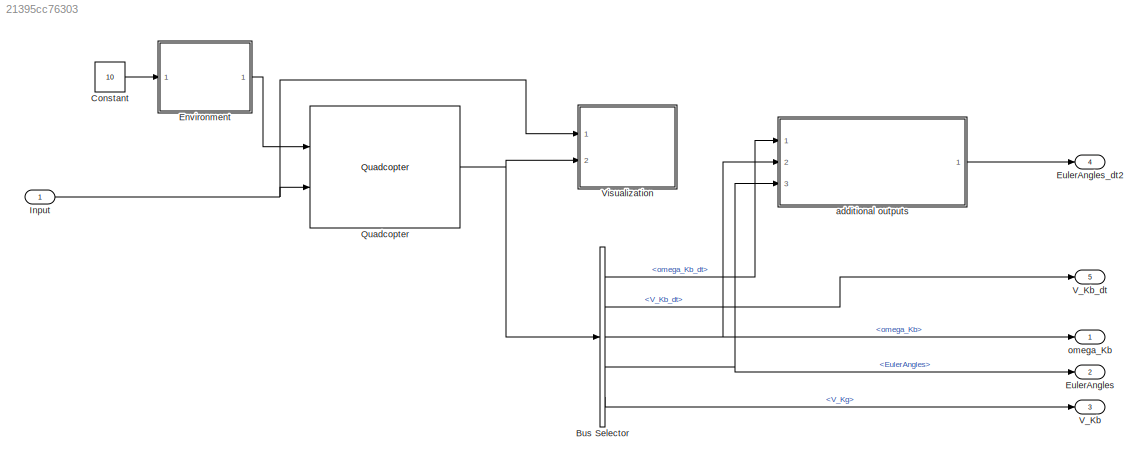
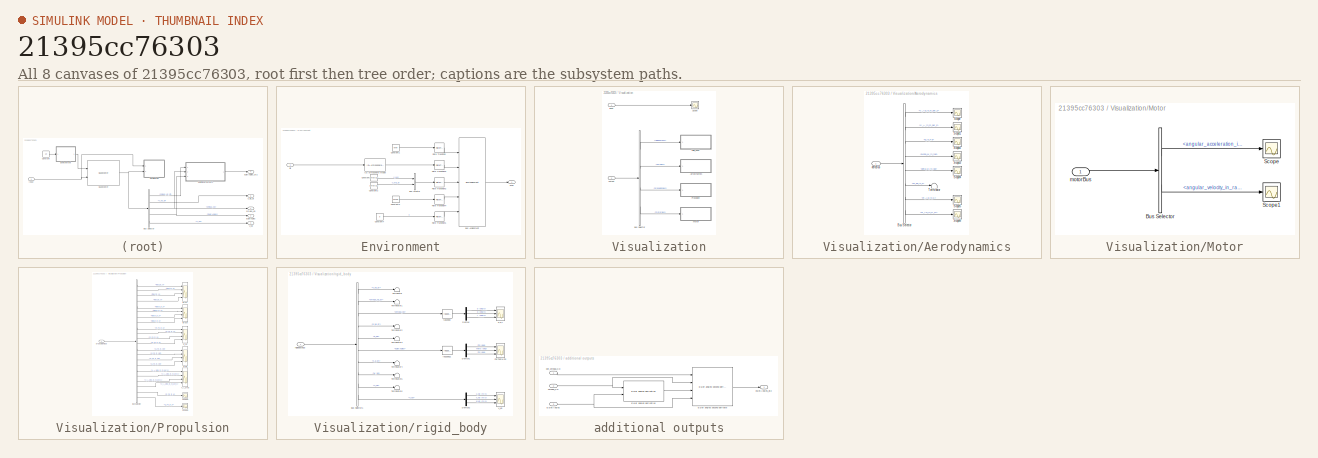
[diagram: thumbnail index - all 8 canvases of the model, root first then tree order]
MODEL slx_21395cc76303
KIND model
CONFIG AbsTol = auto
CONFIG EnableMultiTasking = on
CONFIG FixedStep = sample_time
CONFIG MaxStep = auto
CONFIG MinStep = auto
CONFIG RelTol = 1e-4
CONFIG SampleTimeConstraint = Unconstrained
CONFIG Solver = ode23
CONFIG SolverName = ode23
CONFIG StartTime = 0.0
CONFIG StopTime = 1000
BLOCK [BusSelector] Bus Selector
  OutputAsBus = off
  OutputSignals = rigidBodyBus.omega_Kb_dt,rigidBodyBus.V_Kb_dt,rigidBodyBus.omega_Kb,rigidBodyBus.EulerAngles,rigidBodyBus.V_Kg
  Ports = [1, 5]
BLOCK [Constant] Constant
  Value = 10
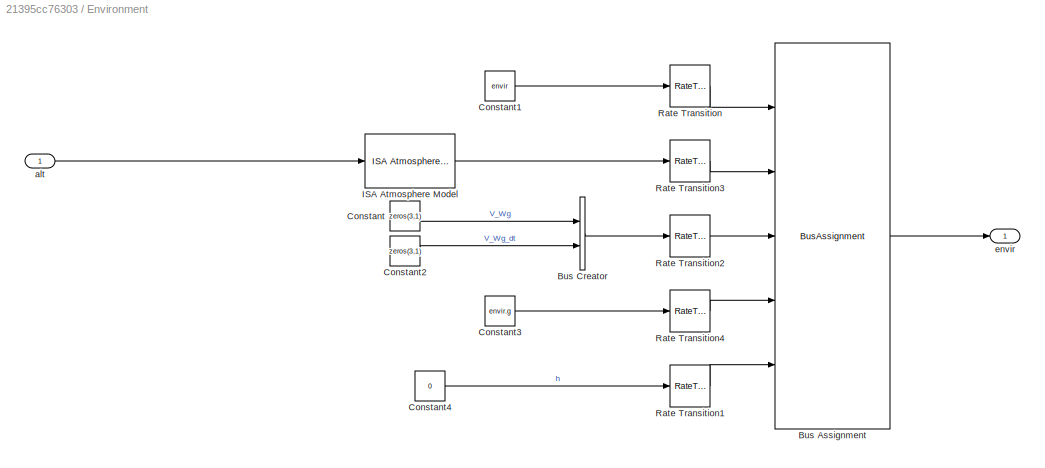
BLOCK [SubSystem] Environment
  Ports = [1, 1]
  RequestExecContextInheritance = off
BLOCK [BusAssignment] Environment/Bus Assignment
  AssignedSignals = atmosphere,wind,g,alt_ground
  Ports = [5, 1]
BLOCK [BusCreator] Environment/Bus Creator
  DisplayOption = bar
  InheritFromInputs = on
  Inputs = 2
  Ports = [2, 1]
BLOCK [Constant] Environment/Constant
  Value = zeros(3,1)
BLOCK [Constant] Environment/Constant1
  OutDataTypeStr = Bus: envirBus
  Value = envir
BLOCK [Constant] Environment/Constant2
  Value = zeros(3,1)
BLOCK [Constant] Environment/Constant3
  Value = envir.g
BLOCK [Constant] Environment/Constant4
  Value = 0
BLOCK [Reference] Environment/ISA Atmosphere Model  REF=atmosphere_lib/ISA Atmosphere Model  (lib defined in slx_398a0eb2fa35)
  Ports = [1, 1]
  SourceBlock = atmosphere_lib/ISA Atmosphere Model
  SourceProductName = LADAC
BLOCK [RateTransition] Environment/Rate Transition
BLOCK [RateTransition] Environment/Rate Transition1
BLOCK [RateTransition] Environment/Rate Transition2
BLOCK [RateTransition] Environment/Rate Transition3
BLOCK [RateTransition] Environment/Rate Transition4
BLOCK [Inport] Environment/alt
  IconDisplay = Port number
BLOCK [Outport] Environment/envir
  IconDisplay = Port number
BLOCK [Outport] EulerAngles
  IconDisplay = Port number
  Port = 2
BLOCK [Outport] EulerAngles_dt2
  IconDisplay = Port number
  Port = 4
BLOCK [Inport] Input
  IconDisplay = Port number
  PortDimensions = 4
BLOCK [Reference] Quadcopter  REF=quadcopter_lib/Quadcopter  (lib defined in slx_bd6b051694d1)
  Ports = [2, 1]
  SourceBlock = quadcopter_lib/Quadcopter
  SourceProductName = LADAC
BLOCK [Outport] V_Kb
  IconDisplay = Port number
  Port = 3
BLOCK [Outport] V_Kb_dt
  IconDisplay = Port number
  Port = 5
BLOCK [SubSystem] Visualization
  Ports = [2]
  RequestExecContextInheritance = off
BLOCK [SubSystem] Visualization/Aerodynamics
  Ports = [1]
  RequestExecContextInheritance = off
BLOCK [BusSelector] Visualization/Aerodynamics/Bus Selector
  OutputAsBus = off
  OutputSignals = V_Ab_in_m_per_s,V_A_in_m_per_s,q_in_Pa,angles.alpha_M_in_rad,angles.beta_M_in_rad,M_ba_in_1,R_Ab_in_N,Q_Ab_in_N_m
  Ports = [1, 8]
BLOCK [Scope] Visualization/Aerodynamics/Scope
  Floating = off
  NumInputPorts = 1
  Ports = [1]
  ScopeSpecificationString = Simulink.scopes.TimeScopeBlockCfg('CurrentConfiguration', extmgr.ConfigurationSet(extmgr.Configuration('Core','General UI',true),extmgr.Configuration('Core','Source UI',true),extmgr.Configuration('Sources','WiredSimulink',true,'DataLoggingVariableName','ScopeData1'),extmgr.Configuration('Visuals','Time Domain',true),extmgr.Configuration('Tools','Plot Navigation',true),extmgr.Configuration('Tools',...<+40ch>
BLOCK [Scope] Visualization/Aerodynamics/Scope1
  Floating = off
  NumInputPorts = 1
  Ports = [1]
  ScopeSpecificationString = Simulink.scopes.TimeScopeBlockCfg('CurrentConfiguration', extmgr.ConfigurationSet(extmgr.Configuration('Core','General UI',true),extmgr.Configuration('Core','Source UI',true),extmgr.Configuration('Sources','WiredSimulink',true,'DataLoggingVariableName','ScopeData2'),extmgr.Configuration('Visuals','Time Domain',true,'SerializedDisplays',{struct('MinYLimReal','-0.81438','MaxYLimReal','7.32941','YLab...<+1419ch>
BLOCK [Scope] Visualization/Aerodynamics/Scope2
  Floating = off
  NumInputPorts = 1
  Ports = [1]
  ScopeSpecificationString = Simulink.scopes.TimeScopeBlockCfg('CurrentConfiguration', extmgr.ConfigurationSet(extmgr.Configuration('Core','General UI',true),extmgr.Configuration('Core','Source UI',true),extmgr.Configuration('Sources','WiredSimulink',true,'DataLoggingVariableName','ScopeData3'),extmgr.Configuration('Visuals','Time Domain',true),extmgr.Configuration('Tools','Plot Navigation',true),extmgr.Configuration('Tools',...<+40ch>
BLOCK [Scope] Visualization/Aerodynamics/Scope3
  Floating = off
  NumInputPorts = 1
  Ports = [1]
  ScopeSpecificationString = Simulink.scopes.TimeScopeBlockCfg('CurrentConfiguration', extmgr.ConfigurationSet(extmgr.Configuration('Core','General UI',true),extmgr.Configuration('Core','Source UI',true),extmgr.Configuration('Sources','WiredSimulink',true,'DataLoggingVariableName','ScopeData4'),extmgr.Configuration('Visuals','Time Domain',true,'SerializedDisplays',{struct('MinYLimReal','-1.9635','MaxYLimReal','1.9635','YLabel...<+1413ch>
BLOCK [Scope] Visualization/Aerodynamics/Scope4
  Floating = off
  NumInputPorts = 1
  Ports = [1]
  ScopeSpecificationString = Simulink.scopes.TimeScopeBlockCfg('CurrentConfiguration', extmgr.ConfigurationSet(extmgr.Configuration('Core','General UI',true),extmgr.Configuration('Core','Source UI',true),extmgr.Configuration('Sources','WiredSimulink',true,'DataLoggingVariableName','ScopeData5'),extmgr.Configuration('Visuals','Time Domain',true,'SerializedDisplays',{struct('MinYLimReal','-3.92698','MaxYLimReal','3.92696','YLab...<+1418ch>
BLOCK [Scope] Visualization/Aerodynamics/Scope5
  Floating = off
  NumInputPorts = 1
  Ports = [1]
  ScopeSpecificationString = Simulink.scopes.TimeScopeBlockCfg('CurrentConfiguration', extmgr.ConfigurationSet(extmgr.Configuration('Core','General UI',true),extmgr.Configuration('Core','Source UI',true),extmgr.Configuration('Sources','WiredSimulink',true,'DataLoggingVariableName','ScopeData6'),extmgr.Configuration('Visuals','Time Domain',true,'SerializedDisplays',{struct('MinYLimReal','-0.83398','MaxYLimReal','0.42106','YLab...<+1516ch>
BLOCK [Scope] Visualization/Aerodynamics/Scope6
  Floating = off
  NumInputPorts = 1
  Ports = [1]
  ScopeSpecificationString = Simulink.scopes.TimeScopeBlockCfg('CurrentConfiguration', extmgr.ConfigurationSet(extmgr.Configuration('Core','General UI',true),extmgr.Configuration('Core','Source UI',true),extmgr.Configuration('Sources','WiredSimulink',true,'DataLoggingVariableName','ScopeData7'),extmgr.Configuration('Visuals','Time Domain',true,'SerializedDisplays',{struct('MinYLimReal','-0.00000000014','MaxYLimReal','0.000000...<+1502ch>
BLOCK [Terminator] Visualization/Aerodynamics/Terminator
BLOCK [Inport] Visualization/Aerodynamics/aeroBus
  IconDisplay = Port number
BLOCK [BusSelector] Visualization/Bus Selector
  OutputAsBus = off
  OutputSignals = rigidBodyBus,aeroBus,propulsionBus,motorBus
  Ports = [1, 4]
BLOCK [SubSystem] Visualization/Motor
  Ports = [1]
  RequestExecContextInheritance = off
BLOCK [BusSelector] Visualization/Motor/Bus Selector
  OutputAsBus = off
  OutputSignals = angular_acceleration_in_rad_per_square_s,angular_velocity_in_rad_per_s
  Ports = [1, 2]
BLOCK [Scope] Visualization/Motor/Scope
  Floating = off
  NumInputPorts = 1
  Ports = [1]
  ScopeSpecificationString = Simulink.scopes.TimeScopeBlockCfg('CurrentConfiguration', extmgr.ConfigurationSet(extmgr.Configuration('Core','General UI',true),extmgr.Configuration('Core','Source UI',true),extmgr.Configuration('Sources','WiredSimulink',true,'DataLoggingVariableName','ScopeData15'),extmgr.Configuration('Visuals','Time Domain',true,'SerializedDisplays',{struct('MinYLimReal','-14601.27633','MaxYLimReal','1999.6683...<+1596ch>
BLOCK [Scope] Visualization/Motor/Scope1
  Floating = off
  NumInputPorts = 1
  Ports = [1]
  ScopeSpecificationString = Simulink.scopes.TimeScopeBlockCfg('CurrentConfiguration', extmgr.ConfigurationSet(extmgr.Configuration('Core','General UI',true),extmgr.Configuration('Core','Source UI',true),extmgr.Configuration('Sources','WiredSimulink',true,'DataLoggingVariableName','ScopeData16'),extmgr.Configuration('Visuals','Time Domain',true,'SerializedDisplays',{struct('MinYLimReal','-86.18034','MaxYLimReal','775.62302','...<+1610ch>
BLOCK [Inport] Visualization/Motor/motorBus
  IconDisplay = Port number
BLOCK [SubSystem] Visualization/Propulsion
  Ports = [1]
  RequestExecContextInheritance = off
BLOCK [BusSelector] Visualization/Propulsion/Bus Selector
  OutputAsBus = off
  OutputSignals = propeller_1.thrust_in_N,propeller_2.thrust_in_N,propeller_3.thrust_in_N,propeller_4.thrust_in_N,propeller_1.torque_in_N,propeller_2.torque_in_N,propeller_3.torque_in_N,propeller_4.torque_in_N,propeller_1.R_Fb_in_N,propeller_2.R_Fb_in_N,propeller_3.R_Fb_in_N,propeller_4.R_Fb_in_N,propeller_1.Q_Fb_in_Nm,propeller_2.Q_Fb_in_Nm,propeller_3.Q_Fb_in_Nm,propeller_4.Q_Fb_in_Nm,propeller_1.V_A_prop_in_m_pe...<+119ch>
  Ports = [1, 22]
BLOCK [Scope] Visualization/Propulsion/Q_Fb
  Floating = off
  NumInputPorts = 4
  Ports = [4]
  ScopeSpecificationString = Simulink.scopes.TimeScopeBlockCfg('CurrentConfiguration', extmgr.ConfigurationSet(extmgr.Configuration('Core','General UI',true),extmgr.Configuration('Core','Source UI',true),extmgr.Configuration('Sources','WiredSimulink',true,'DataLoggingVariableName','ScopeData11'),extmgr.Configuration('Visuals','Time Domain',true,'SerializedDisplays',{struct('MinYLimReal','-0.22601','MaxYLimReal','-0.19277','YL...<+1564ch>
BLOCK [Scope] Visualization/Propulsion/R_Fb
  Floating = off
  NumInputPorts = 4
  Ports = [4]
  ScopeSpecificationString = Simulink.scopes.TimeScopeBlockCfg('CurrentConfiguration', extmgr.ConfigurationSet(extmgr.Configuration('Core','General UI',true),extmgr.Configuration('Core','Source UI',true),extmgr.Configuration('Sources','WiredSimulink',true,'DataLoggingVariableName','ScopeData10'),extmgr.Configuration('Visuals','Time Domain',true,'SerializedDisplays',{struct('MinYLimReal','-8.5339','MaxYLimReal','0.94821','YLab...<+1626ch>
BLOCK [Scope] Visualization/Propulsion/Scope5
  Floating = off
  NumInputPorts = 1
  Ports = [1]
  ScopeSpecificationString = Simulink.scopes.TimeScopeBlockCfg('CurrentConfiguration', extmgr.ConfigurationSet(extmgr.Configuration('Core','General UI',true),extmgr.Configuration('Core','Source UI',true),extmgr.Configuration('Sources','WiredSimulink',true,'DataLoggingVariableName','ScopeData13'),extmgr.Configuration('Visuals','Time Domain',true,'SerializedDisplays',{struct('MinYLimReal','-34.1356','MaxYLimReal','3.79284','YLa...<+1498ch>
BLOCK [Scope] Visualization/Propulsion/Scope6
  Floating = off
  NumInputPorts = 1
  Ports = [1]
  ScopeSpecificationString = Simulink.scopes.TimeScopeBlockCfg('CurrentConfiguration', extmgr.ConfigurationSet(extmgr.Configuration('Core','General UI',true),extmgr.Configuration('Core','Source UI',true),extmgr.Configuration('Sources','WiredSimulink',true,'DataLoggingVariableName','ScopeData14'),extmgr.Configuration('Visuals','Time Domain',true,'SerializedDisplays',{struct('MinYLimReal','-0.90403','MaxYLimReal','-0.77107','YL...<+1407ch>
BLOCK [Scope] Visualization/Propulsion/V_A_prop
  Floating = off
  NumInputPorts = 4
  Ports = [4]
  ScopeSpecificationString = Simulink.scopes.TimeScopeBlockCfg('CurrentConfiguration', extmgr.ConfigurationSet(extmgr.Configuration('Core','General UI',true),extmgr.Configuration('Core','Source UI',true),extmgr.Configuration('Sources','WiredSimulink',true,'DataLoggingVariableName','ScopeData12'),extmgr.Configuration('Visuals','Time Domain',true,'SerializedDisplays',{struct('MinYLimReal','-0.02599','MaxYLimReal','0.06439','YLa...<+1693ch>
BLOCK [Inport] Visualization/Propulsion/propulsionBus
  IconDisplay = Port number
BLOCK [Scope] Visualization/Propulsion/thrust
  Floating = off
  NumInputPorts = 4
  Ports = [4]
  ScopeSpecificationString = Simulink.scopes.TimeScopeBlockCfg('CurrentConfiguration', extmgr.ConfigurationSet(extmgr.Configuration('Core','General UI',true),extmgr.Configuration('Core','Source UI',true),extmgr.Configuration('Sources','WiredSimulink',true,'DataLoggingVariableName','ScopeData8'),extmgr.Configuration('Visuals','Time Domain',true,'SerializedDisplays',{struct('MinYLimReal','-0.01333','MaxYLimReal','0.11998','YLab...<+1420ch>
BLOCK [Scope] Visualization/Propulsion/torque
  Floating = off
  NumInputPorts = 4
  Ports = [4]
  ScopeSpecificationString = Simulink.scopes.TimeScopeBlockCfg('CurrentConfiguration', extmgr.ConfigurationSet(extmgr.Configuration('Core','General UI',true),extmgr.Configuration('Core','Source UI',true),extmgr.Configuration('Sources','WiredSimulink',true,'DataLoggingVariableName','ScopeData9'),extmgr.Configuration('Visuals','Time Domain',true,'SerializedDisplays',{struct('MinYLimReal','-0.00039','MaxYLimReal','0.00353','YLab...<+1445ch>
BLOCK [Scope] Visualization/Scope
  Floating = off
  NumInputPorts = 1
  Ports = [1]
  ScopeSpecificationString = Simulink.scopes.TimeScopeBlockCfg('CurrentConfiguration', extmgr.ConfigurationSet(extmgr.Configuration('Core','General UI',true),extmgr.Configuration('Core','Source UI',true),extmgr.Configuration('Sources','WiredSimulink',true,'DataLoggingVariableName','ScopeData1'),extmgr.Configuration('Visuals','Time Domain',true,'SerializedDisplays',{struct('MinYLimReal','-0.125','MaxYLimReal','1.125','YLabelRe...<+1582ch>
BLOCK [Inport] Visualization/input
  IconDisplay = Port number
BLOCK [Inport] Visualization/output
  IconDisplay = Port number
  Port = 2
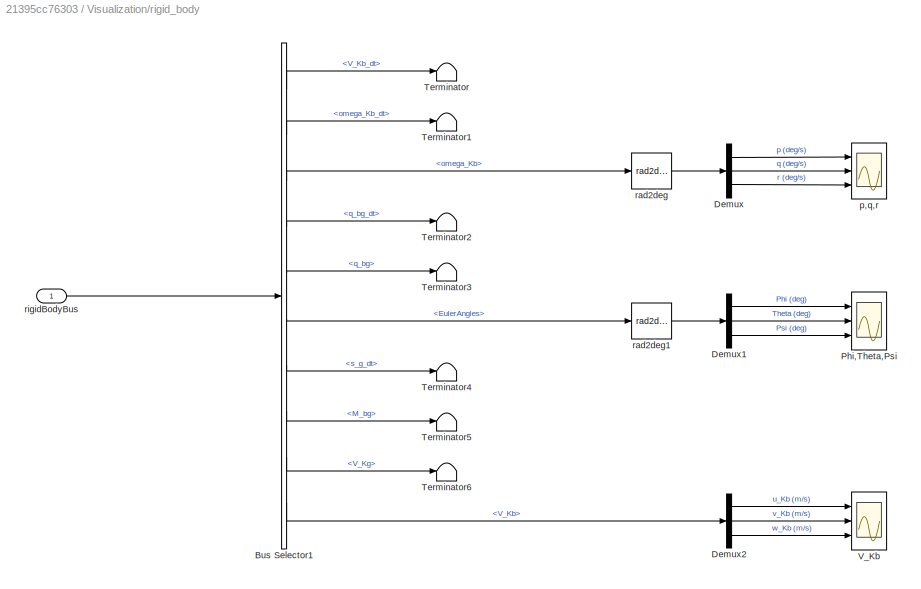
BLOCK [SubSystem] Visualization/rigid_body
  Ports = [1]
  RequestExecContextInheritance = off
BLOCK [BusSelector] Visualization/rigid_body/Bus Selector1
  OutputAsBus = off
  OutputSignals = V_Kb_dt,omega_Kb_dt,omega_Kb,q_bg_dt,q_bg,EulerAngles,s_g_dt,M_bg,V_Kg,V_Kb
  Ports = [1, 10]
BLOCK [Demux] Visualization/rigid_body/Demux
  DisplayOption = bar
  Outputs = 3
  Ports = [1, 3]
BLOCK [Demux] Visualization/rigid_body/Demux1
  DisplayOption = bar
  Outputs = 3
  Ports = [1, 3]
BLOCK [Demux] Visualization/rigid_body/Demux2
  DisplayOption = bar
  Outputs = 3
  Ports = [1, 3]
BLOCK [Scope] Visualization/rigid_body/Phi,Theta,Psi
  Floating = off
  NumInputPorts = 3
  Ports = [3]
  ScopeSpecificationString = Simulink.scopes.TimeScopeBlockCfg('CurrentConfiguration', extmgr.ConfigurationSet(extmgr.Configuration('Core','General UI',true),extmgr.Configuration('Core','Source UI',true),extmgr.Configuration('Sources','WiredSimulink',true,'DataLoggingVariableName','ScopeAngles','DataLoggingSaveFormat','StructureWithTime'),extmgr.Configuration('Visuals','Time Domain',true,'SerializedDisplays',{struct('MinYLimR...<+1551ch>
BLOCK [Terminator] Visualization/rigid_body/Terminator
BLOCK [Terminator] Visualization/rigid_body/Terminator1
BLOCK [Terminator] Visualization/rigid_body/Terminator2
BLOCK [Terminator] Visualization/rigid_body/Terminator3
BLOCK [Terminator] Visualization/rigid_body/Terminator4
BLOCK [Terminator] Visualization/rigid_body/Terminator5
BLOCK [Terminator] Visualization/rigid_body/Terminator6
BLOCK [Scope] Visualization/rigid_body/V_Kb
  Floating = off
  NumInputPorts = 3
  Ports = [3]
  ScopeSpecificationString = Simulink.scopes.TimeScopeBlockCfg('CurrentConfiguration', extmgr.ConfigurationSet(extmgr.Configuration('Core','General UI',true),extmgr.Configuration('Core','Source UI',true),extmgr.Configuration('Sources','WiredSimulink',true,'DataLoggingVariableName','ScopeV','DataLoggingSaveFormat','StructureWithTime'),extmgr.Configuration('Visuals','Time Domain',true,'SerializedDisplays',{struct('MinYLimReal',...<+1529ch>
BLOCK [Scope] Visualization/rigid_body/p,q,r
  Floating = off
  NumInputPorts = 3
  Ports = [3]
  ScopeSpecificationString = Simulink.scopes.TimeScopeBlockCfg('CurrentConfiguration', extmgr.ConfigurationSet(extmgr.Configuration('Core','General UI',true),extmgr.Configuration('Core','Source UI',true),extmgr.Configuration('Sources','WiredSimulink',true,'DataLoggingVariableName','ScopeRates','DataLoggingSaveFormat','StructureWithTime'),extmgr.Configuration('Visuals','Time Domain',true,'SerializedDisplays',{struct('MinYLimRe...<+1567ch>
BLOCK [Reference] Visualization/rigid_body/rad2deg  REF=unit_conversions_lib/rad2deg  (lib defined in slx_ae2855d4d91e)
  Ports = [1, 1]
  SourceBlock = unit_conversions_lib/rad2deg
  SourceProductName = LADAC
BLOCK [Reference] Visualization/rigid_body/rad2deg1  REF=unit_conversions_lib/rad2deg  (lib defined in slx_ae2855d4d91e)
  Ports = [1, 1]
  SourceBlock = unit_conversions_lib/rad2deg
  SourceProductName = LADAC
BLOCK [Inport] Visualization/rigid_body/rigidBodyBus
  IconDisplay = Port number
BLOCK [SubSystem] additional outputs
  Ports = [3, 1]
  RequestExecContextInheritance = off
BLOCK [Reference] additional outputs/Euler angles derivative  REF=flight_parameters_lib/Euler angles derivative  (lib defined in slx_01e6108afe6f)
  Ports = [2, 1]
  SourceBlock = flight_parameters_lib/Euler angles derivative
  SourceProductName = LADAC
  SourceType = SubSystem
BLOCK [Reference] additional outputs/Euler angles second derivate  REF=flight_parameters_lib/Euler angles second derivate  (lib defined in slx_01e6108afe6f)
  Ports = [4, 1]
  SourceBlock = flight_parameters_lib/Euler angles second derivate
  SourceProductName = LADAC
  SourceType = SubSystem
BLOCK [Inport] additional outputs/EulerAngles
  IconDisplay = Port number
  Port = 3
BLOCK [Inport] additional outputs/dot_omega_Kb
  IconDisplay = Port number
BLOCK [Outport] additional outputs/eulerAngles_dt2
  IconDisplay = Port number
BLOCK [Inport] additional outputs/omega_Kb
  IconDisplay = Port number
  Port = 2
BLOCK [Outport] omega_Kb
  IconDisplay = Port number
LINE Bus Selector:1 -> additional outputs:1
LINE Bus Selector:2 -> V_Kb_dt:1
NET Bus Selector:3 -> additional outputs:2, omega_Kb:1
NET Bus Selector:4 -> EulerAngles:1, additional outputs:3
LINE Bus Selector:5 -> V_Kb:1
LINE Constant:1 -> Environment:1
LINE Environment/Bus Assignment:1 -> Environment/envir:1
LINE Environment/Bus Creator:1 -> Environment/Rate Transition2:1
LINE Environment/Constant1:1 -> Environment/Rate Transition:1
LINE Environment/Constant2:1 -> Environment/Bus Creator:2
LINE Environment/Constant3:1 -> Environment/Rate Transition4:1
LINE Environment/Constant4:1 -> Environment/Rate Transition1:1
LINE Environment/Constant:1 -> Environment/Bus Creator:1
LINE Environment/ISA Atmosphere Model:1 -> Environment/Rate Transition3:1
LINE Environment/Rate Transition1:1 -> Environment/Bus Assignment:5
LINE Environment/Rate Transition2:1 -> Environment/Bus Assignment:3
LINE Environment/Rate Transition3:1 -> Environment/Bus Assignment:2
LINE Environment/Rate Transition4:1 -> Environment/Bus Assignment:4
LINE Environment/Rate Transition:1 -> Environment/Bus Assignment:1
LINE Environment/alt:1 -> Environment/ISA Atmosphere Model:1
LINE Environment:1 -> Quadcopter:1
NET Input:1 -> Quadcopter:2, Visualization:1
NET Quadcopter:1 -> Bus Selector:1, Visualization:2
LINE Visualization/Aerodynamics/Bus Selector:1 -> Visualization/Aerodynamics/Scope:1
LINE Visualization/Aerodynamics/Bus Selector:2 -> Visualization/Aerodynamics/Scope1:1
LINE Visualization/Aerodynamics/Bus Selector:3 -> Visualization/Aerodynamics/Scope2:1
LINE Visualization/Aerodynamics/Bus Selector:4 -> Visualization/Aerodynamics/Scope3:1
LINE Visualization/Aerodynamics/Bus Selector:5 -> Visualization/Aerodynamics/Scope4:1
LINE Visualization/Aerodynamics/Bus Selector:6 -> Visualization/Aerodynamics/Terminator:1
LINE Visualization/Aerodynamics/Bus Selector:7 -> Visualization/Aerodynamics/Scope5:1
LINE Visualization/Aerodynamics/Bus Selector:8 -> Visualization/Aerodynamics/Scope6:1
LINE Visualization/Aerodynamics/aeroBus:1 -> Visualization/Aerodynamics/Bus Selector:1
LINE Visualization/Bus Selector:1 -> Visualization/rigid_body:1
LINE Visualization/Bus Selector:2 -> Visualization/Aerodynamics:1
LINE Visualization/Bus Selector:3 -> Visualization/Propulsion:1
LINE Visualization/Bus Selector:4 -> Visualization/Motor:1
LINE Visualization/Motor/Bus Selector:1 -> Visualization/Motor/Scope:1
LINE Visualization/Motor/Bus Selector:2 -> Visualization/Motor/Scope1:1
LINE Visualization/Motor/motorBus:1 -> Visualization/Motor/Bus Selector:1
LINE Visualization/Propulsion/Bus Selector:1 -> Visualization/Propulsion/thrust:1
LINE Visualization/Propulsion/Bus Selector:10 -> Visualization/Propulsion/R_Fb:2
LINE Visualization/Propulsion/Bus Selector:11 -> Visualization/Propulsion/R_Fb:3
LINE Visualization/Propulsion/Bus Selector:12 -> Visualization/Propulsion/R_Fb:4
LINE Visualization/Propulsion/Bus Selector:13 -> Visualization/Propulsion/Q_Fb:1
LINE Visualization/Propulsion/Bus Selector:14 -> Visualization/Propulsion/Q_Fb:2
LINE Visualization/Propulsion/Bus Selector:15 -> Visualization/Propulsion/Q_Fb:3
LINE Visualization/Propulsion/Bus Selector:16 -> Visualization/Propulsion/Q_Fb:4
LINE Visualization/Propulsion/Bus Selector:17 -> Visualization/Propulsion/V_A_prop:1
LINE Visualization/Propulsion/Bus Selector:18 -> Visualization/Propulsion/V_A_prop:2
LINE Visualization/Propulsion/Bus Selector:19 -> Visualization/Propulsion/V_A_prop:3
LINE Visualization/Propulsion/Bus Selector:2 -> Visualization/Propulsion/thrust:2
LINE Visualization/Propulsion/Bus Selector:20 -> Visualization/Propulsion/V_A_prop:4
LINE Visualization/Propulsion/Bus Selector:21 -> Visualization/Propulsion/Scope5:1
LINE Visualization/Propulsion/Bus Selector:22 -> Visualization/Propulsion/Scope6:1
LINE Visualization/Propulsion/Bus Selector:3 -> Visualization/Propulsion/thrust:3
LINE Visualization/Propulsion/Bus Selector:4 -> Visualization/Propulsion/thrust:4
LINE Visualization/Propulsion/Bus Selector:5 -> Visualization/Propulsion/torque:1
LINE Visualization/Propulsion/Bus Selector:6 -> Visualization/Propulsion/torque:2
LINE Visualization/Propulsion/Bus Selector:7 -> Visualization/Propulsion/torque:3
LINE Visualization/Propulsion/Bus Selector:8 -> Visualization/Propulsion/torque:4
LINE Visualization/Propulsion/Bus Selector:9 -> Visualization/Propulsion/R_Fb:1
LINE Visualization/Propulsion/propulsionBus:1 -> Visualization/Propulsion/Bus Selector:1
LINE Visualization/input:1 -> Visualization/Scope:1
LINE Visualization/output:1 -> Visualization/Bus Selector:1
LINE Visualization/rigid_body/Bus Selector1:1 -> Visualization/rigid_body/Terminator:1
LINE Visualization/rigid_body/Bus Selector1:10 -> Visualization/rigid_body/Demux2:1
LINE Visualization/rigid_body/Bus Selector1:2 -> Visualization/rigid_body/Terminator1:1
LINE Visualization/rigid_body/Bus Selector1:3 -> Visualization/rigid_body/rad2deg:1
LINE Visualization/rigid_body/Bus Selector1:4 -> Visualization/rigid_body/Terminator2:1
LINE Visualization/rigid_body/Bus Selector1:5 -> Visualization/rigid_body/Terminator3:1
LINE Visualization/rigid_body/Bus Selector1:6 -> Visualization/rigid_body/rad2deg1:1
LINE Visualization/rigid_body/Bus Selector1:7 -> Visualization/rigid_body/Terminator4:1
LINE Visualization/rigid_body/Bus Selector1:8 -> Visualization/rigid_body/Terminator5:1
LINE Visualization/rigid_body/Bus Selector1:9 -> Visualization/rigid_body/Terminator6:1
LINE Visualization/rigid_body/Demux1:1 -> Visualization/rigid_body/Phi,Theta,Psi:1
LINE Visualization/rigid_body/Demux1:2 -> Visualization/rigid_body/Phi,Theta,Psi:2
LINE Visualization/rigid_body/Demux1:3 -> Visualization/rigid_body/Phi,Theta,Psi:3
LINE Visualization/rigid_body/Demux2:1 -> Visualization/rigid_body/V_Kb:1
LINE Visualization/rigid_body/Demux2:2 -> Visualization/rigid_body/V_Kb:2
LINE Visualization/rigid_body/Demux2:3 -> Visualization/rigid_body/V_Kb:3
LINE Visualization/rigid_body/Demux:1 -> Visualization/rigid_body/p,q,r:1
LINE Visualization/rigid_body/Demux:2 -> Visualization/rigid_body/p,q,r:2
LINE Visualization/rigid_body/Demux:3 -> Visualization/rigid_body/p,q,r:3
LINE Visualization/rigid_body/rad2deg1:1 -> Visualization/rigid_body/Demux1:1
LINE Visualization/rigid_body/rad2deg:1 -> Visualization/rigid_body/Demux:1
LINE Visualization/rigid_body/rigidBodyBus:1 -> Visualization/rigid_body/Bus Selector1:1
LINE additional outputs/Euler angles derivative:1 -> additional outputs/Euler angles second derivate:3
LINE additional outputs/Euler angles second derivate:1 -> additional outputs/eulerAngles_dt2:1
NET additional outputs/EulerAngles:1 -> additional outputs/Euler angles derivative:2, additional outputs/Euler angles second derivate:4
LINE additional outputs/dot_omega_Kb:1 -> additional outputs/Euler angles second derivate:1
NET additional outputs/omega_Kb:1 -> additional outputs/Euler angles derivative:1, additional outputs/Euler angles second derivate:2
LINE additional outputs:1 -> EulerAngles_dt2:1
note: NET lines group one-source signal fan-out (src -> all destinations, sorted); 1:1 wires keep LINE
